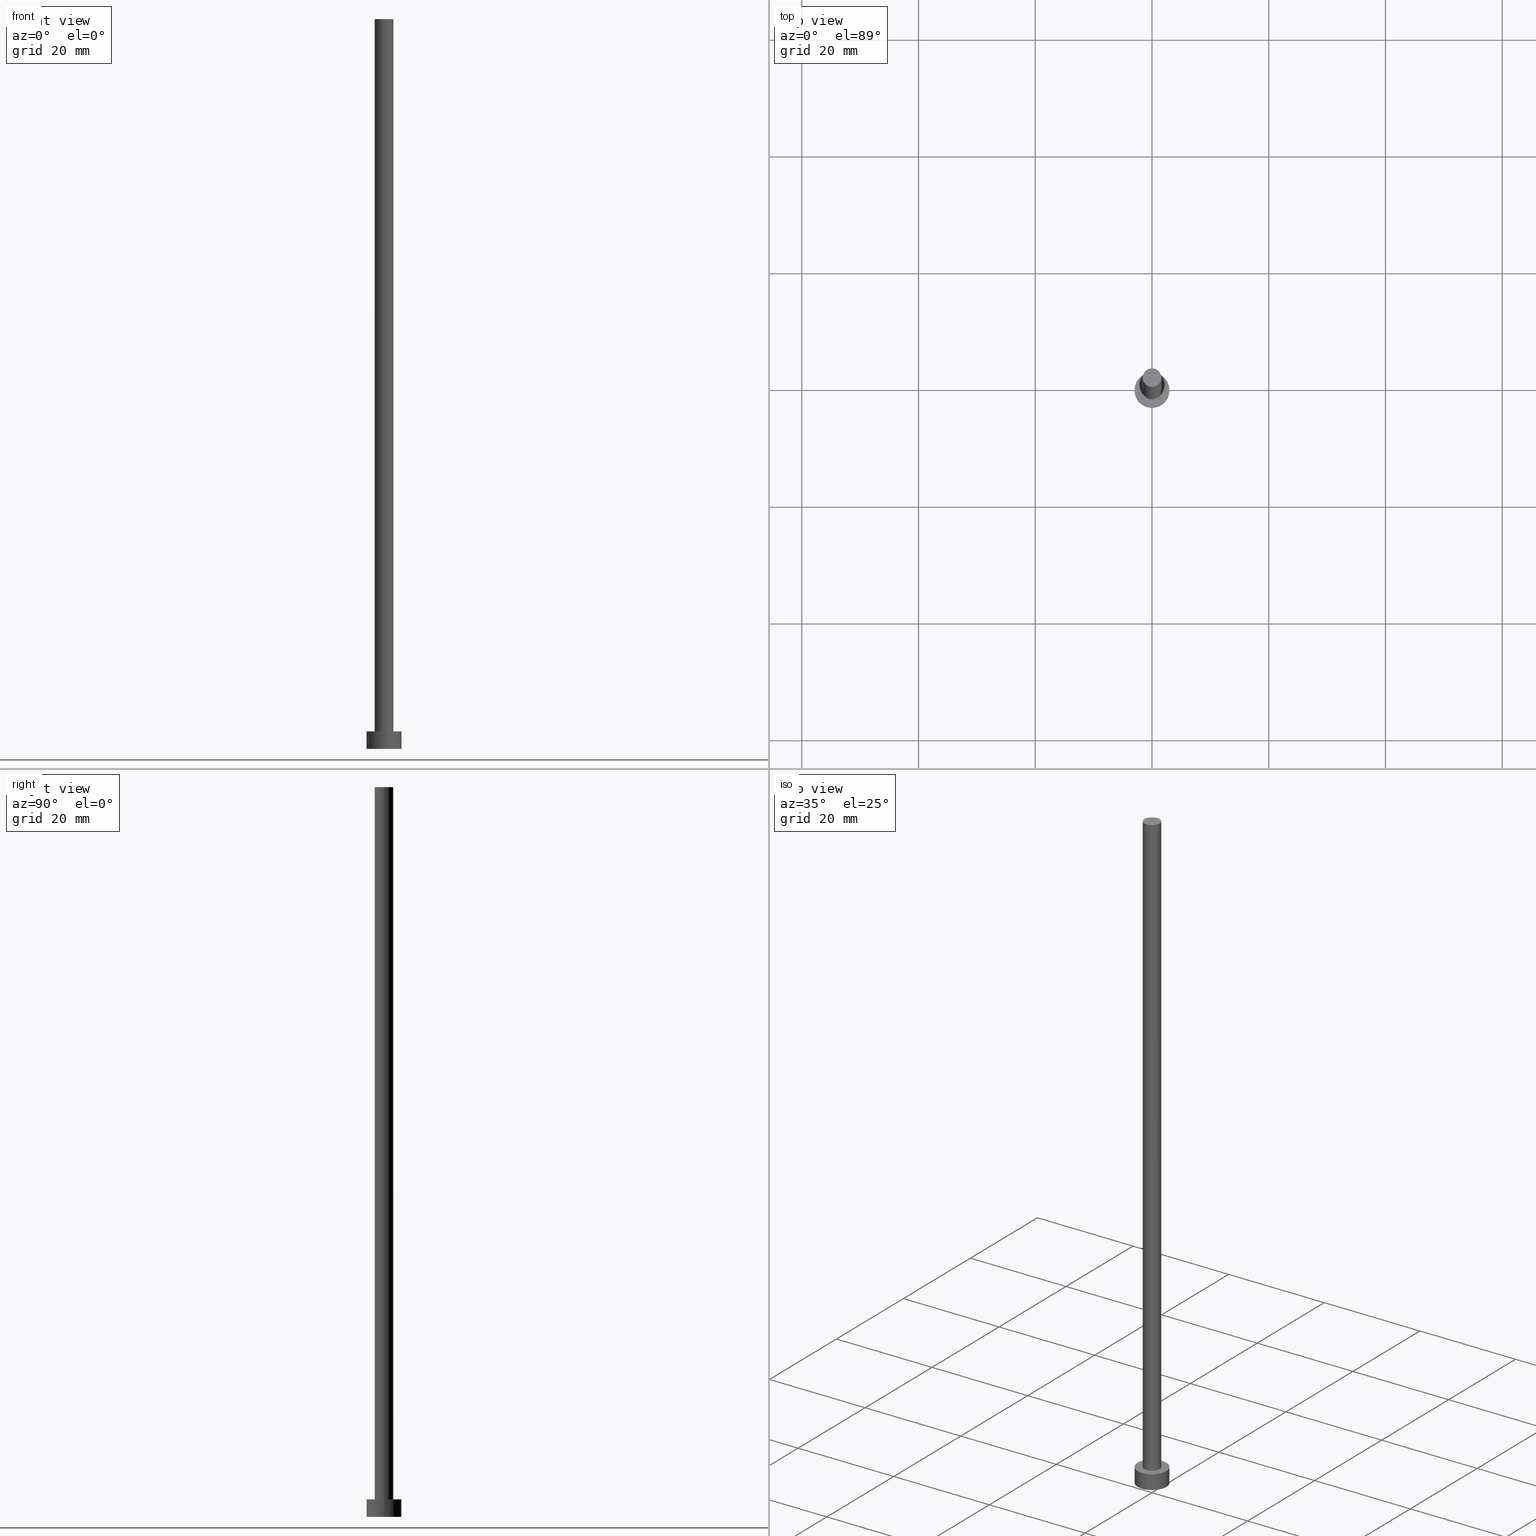
[diagram: canonical four-view strip — front | top / right | iso, engineering-drawing reading convention]
A machine part, canonical four-view strip (front | top / right | iso — engineering-drawing reading convention). The complete STEP part file that produces these views, byte-faithful:
ISO-10303-21;
HEADER;
FILE_DESCRIPTION (( 'STEP AP203' ),
    '1' );
FILE_NAME ('8186.STEP',
    '2023-02-12T12:44:56',
    ( '' ),
    ( '' ),
    'SwSTEP 2.0',
    'SolidWorks 2019',
    '' );
FILE_SCHEMA (( 'CONFIG_CONTROL_DESIGN' ));
ENDSEC;

DATA;
#1 = CALENDAR_DATE ( 2023, 12, 2 ) ;
#2 = EDGE_LOOP ( 'NONE', ( #82, #155 ) ) ;
#3 = DATE_AND_TIME ( #102, #180 ) ;
#4 = DIRECTION ( 'NONE',  ( 1.000000000000000000, 0.000000000000000000, 0.000000000000000000 ) ) ;
#5 = EDGE_LOOP ( 'NONE', ( #217, #103 ) ) ;
#6 = APPROVAL_ROLE ( '' ) ;
#7 = LINE ( 'NONE', #32, #136 ) ;
#8 = CALENDAR_DATE ( 2023, 12, 2 ) ;
#9 = FACE_OUTER_BOUND ( 'NONE', #135, .T. ) ;
#10 = DIRECTION ( 'NONE',  ( 0.000000000000000000, 0.000000000000000000, 1.000000000000000000 ) ) ;
#11 = AXIS2_PLACEMENT_3D ( 'NONE', #225, #29, #149 ) ;
#12 = SECURITY_CLASSIFICATION ( '', '', #100 ) ;
#13 = CARTESIAN_POINT ( 'NONE',  ( 0.000000000000000000, 0.000000000000000000, 125.0000000000000000 ) ) ;
#14 = CC_DESIGN_APPROVAL ( #210, ( #134 ) ) ;
#15 = CARTESIAN_POINT ( 'NONE',  ( -3.000000000000000444, 0.000000000000000000, 3.000000000000000000 ) ) ;
#16 = AXIS2_PLACEMENT_3D ( 'NONE', #160, #157, #4 ) ;
#17 = PRODUCT_RELATED_PRODUCT_CATEGORY ( 'detail', '', ( #175 ) ) ;
#18 = EDGE_LOOP ( 'NONE', ( #140, #101 ) ) ;
#19 = APPROVAL_DATE_TIME ( #137, #210 ) ;
#20 = ORIENTED_EDGE ( 'NONE', *, *, #219, .F. ) ;
#21 = PERSON_AND_ORGANIZATION ( #193, #72 ) ;
#22 = CLOSED_SHELL ( 'NONE', ( #131, #128, #99, #74, #230, #93, #113 ) ) ;
#23 = ORIENTED_EDGE ( 'NONE', *, *, #253, .T. ) ;
#24 = APPROVAL_PERSON_ORGANIZATION ( #174, #210, #218 ) ;
#25 = COORDINATED_UNIVERSAL_TIME_OFFSET ( 1, 0, .AHEAD. ) ;
#26 = ORIENTED_EDGE ( 'NONE', *, *, #214, .T. ) ;
#27 = APPROVAL ( #79, 'NEUR�EN�' ) ;
#28 = DATE_AND_TIME ( #8, #81 ) ;
#29 = DIRECTION ( 'NONE',  ( 0.000000000000000000, 0.000000000000000000, 1.000000000000000000 ) ) ;
#30 = AXIS2_PLACEMENT_3D ( 'NONE', #39, #250, #216 ) ;
#31 = CARTESIAN_POINT ( 'NONE',  ( 0.000000000000000000, 0.000000000000000000, 125.0000000000000000 ) ) ;
#32 = CARTESIAN_POINT ( 'NONE',  ( 3.000000000000000444, 3.673940397442060361E-16, 3.000000000000000000 ) ) ;
#33 = APPROVAL_PERSON_ORGANIZATION ( #46, #27, #121 ) ;
#34 = DESIGN_CONTEXT ( 'detailed design', #194, 'design' ) ;
#35 = DIRECTION ( 'NONE',  ( 1.000000000000000000, 0.000000000000000000, 0.000000000000000000 ) ) ;
#36 = APPLICATION_CONTEXT ( 'configuration controlled 3d designs of mechanical parts and assemblies' ) ;
#37 = DIRECTION ( 'NONE',  ( -0.000000000000000000, -0.000000000000000000, -1.000000000000000000 ) ) ;
#38 = LOCAL_TIME ( 13, 44, 56.00000000000000000, #235 ) ;
#39 = CARTESIAN_POINT ( 'NONE',  ( 0.000000000000000000, 0.000000000000000000, 0.000000000000000000 ) ) ;
#40 = CARTESIAN_POINT ( 'NONE',  ( 1.600000000000000089, 1.959434878635764737E-16, 125.0000000000000000 ) ) ;
#41 = MECHANICAL_CONTEXT ( 'NONE', #36, 'mechanical' ) ;
#42 = ORIENTED_EDGE ( 'NONE', *, *, #104, .F. ) ;
#43 = EDGE_CURVE ( 'NONE', #255, #117, #164, .T. ) ;
#44 = PERSON_AND_ORGANIZATION_ROLE ( 'creator' ) ;
#45 = ORIENTED_EDGE ( 'NONE', *, *, #253, .F. ) ;
#46 = PERSON_AND_ORGANIZATION ( #193, #72 ) ;
#47 =( GEOMETRIC_REPRESENTATION_CONTEXT ( 3 ) GLOBAL_UNCERTAINTY_ASSIGNED_CONTEXT ( ( #129 ) ) GLOBAL_UNIT_ASSIGNED_CONTEXT ( ( #56, #213, #58 ) ) REPRESENTATION_CONTEXT ( 'NONE', 'WORKASPACE' ) );
#48 = DIRECTION ( 'NONE',  ( 0.000000000000000000, 0.000000000000000000, 1.000000000000000000 ) ) ;
#49 = ORIENTED_EDGE ( 'NONE', *, *, #76, .F. ) ;
#50 = DIRECTION ( 'NONE',  ( -0.000000000000000000, -0.000000000000000000, -1.000000000000000000 ) ) ;
#51 = EDGE_CURVE ( 'NONE', #192, #96, #143, .T. ) ;
#52 = CARTESIAN_POINT ( 'NONE',  ( -1.600000000000000089, 0.000000000000000000, 3.000000000000000000 ) ) ;
#53 = COORDINATED_UNIVERSAL_TIME_OFFSET ( 1, 0, .AHEAD. ) ;
#54 = CYLINDRICAL_SURFACE ( 'NONE', #120, 1.600000000000000089 ) ;
#55 = CIRCLE ( 'NONE', #59, 1.600000000000000089 ) ;
#56 =( LENGTH_UNIT ( ) NAMED_UNIT ( * ) SI_UNIT ( .MILLI., .METRE. ) );
#57 = EDGE_CURVE ( 'NONE', #80, #119, #244, .T. ) ;
#58 =( NAMED_UNIT ( * ) SI_UNIT ( $, .STERADIAN. ) SOLID_ANGLE_UNIT ( ) );
#59 = AXIS2_PLACEMENT_3D ( 'NONE', #205, #10, #126 ) ;
#60 = PERSON_AND_ORGANIZATION ( #193, #72 ) ;
#61 = LOCAL_TIME ( 13, 44, 56.00000000000000000, #62 ) ;
#62 = COORDINATED_UNIVERSAL_TIME_OFFSET ( 1, 0, .AHEAD. ) ;
#63 = ORIENTED_EDGE ( 'NONE', *, *, #171, .T. ) ;
#64 = PERSON_AND_ORGANIZATION_ROLE ( 'classification_officer' ) ;
#65 = CARTESIAN_POINT ( 'NONE',  ( 0.000000000000000000, 0.000000000000000000, 3.000000000000000000 ) ) ;
#66 = VECTOR ( 'NONE', #37, 1000.000000000000000 ) ;
#67 = DIRECTION ( 'NONE',  ( 0.000000000000000000, 0.000000000000000000, 1.000000000000000000 ) ) ;
#68 = PERSON_AND_ORGANIZATION ( #193, #72 ) ;
#69 = CYLINDRICAL_SURFACE ( 'NONE', #248, 1.600000000000000089 ) ;
#70 = EDGE_CURVE ( 'NONE', #96, #122, #179, .T. ) ;
#71 = CARTESIAN_POINT ( 'NONE',  ( 1.600000000000000089, 1.959434878635764737E-16, 3.000000000000000000 ) ) ;
#72 = ORGANIZATION ( 'NEUR�EN�', 'NEUR�EN�', '' ) ;
#73 = FACE_OUTER_BOUND ( 'NONE', #220, .T. ) ;
#74 = ADVANCED_FACE ( 'NONE', ( #106, #146 ), #105, .T. ) ;
#75 = CARTESIAN_POINT ( 'NONE',  ( 0.000000000000000000, 0.000000000000000000, 0.000000000000000000 ) ) ;
#76 = EDGE_CURVE ( 'NONE', #192, #173, #55, .T. ) ;
#77 = DIRECTION ( 'NONE',  ( 1.000000000000000000, 0.000000000000000000, 0.000000000000000000 ) ) ;
#78 = DIRECTION ( 'NONE',  ( 0.000000000000000000, 0.000000000000000000, 1.000000000000000000 ) ) ;
#79 = APPROVAL_STATUS ( 'not_yet_approved' ) ;
#80 = VERTEX_POINT ( 'NONE', #182 ) ;
#81 = LOCAL_TIME ( 13, 44, 56.00000000000000000, #53 ) ;
#82 = ORIENTED_EDGE ( 'NONE', *, *, #70, .F. ) ;
#83 = PERSON_AND_ORGANIZATION_ROLE ( 'design_owner' ) ;
#84 = DIRECTION ( 'NONE',  ( 1.000000000000000000, 0.000000000000000000, 0.000000000000000000 ) ) ;
#85 = ORIENTED_EDGE ( 'NONE', *, *, #57, .F. ) ;
#86 = APPROVAL_DATE_TIME ( #28, #148 ) ;
#87 = CARTESIAN_POINT ( 'NONE',  ( -3.000000000000000444, 0.000000000000000000, 3.000000000000000000 ) ) ;
#88 = DIRECTION ( 'NONE',  ( -1.000000000000000000, 0.000000000000000000, 0.000000000000000000 ) ) ;
#89 = CYLINDRICAL_SURFACE ( 'NONE', #98, 3.000000000000000444 ) ;
#90 = CC_DESIGN_DATE_AND_TIME_ASSIGNMENT ( #139, #199, ( #207 ) ) ;
#91 = MANIFOLD_SOLID_BREP ( 'P�idat vysunut�m3', #22 ) ;
#92 = DIRECTION ( 'NONE',  ( 1.000000000000000000, 0.000000000000000000, 0.000000000000000000 ) ) ;
#93 = ADVANCED_FACE ( 'NONE', ( #206 ), #54, .T. ) ;
#94 = AXIS2_PLACEMENT_3D ( 'NONE', #208, #147, #35 ) ;
#95 = AXIS2_PLACEMENT_3D ( 'NONE', #229, #167, #97 ) ;
#96 = VERTEX_POINT ( 'NONE', #52 ) ;
#97 = DIRECTION ( 'NONE',  ( 1.000000000000000000, 0.000000000000000000, 0.000000000000000000 ) ) ;
#98 = AXIS2_PLACEMENT_3D ( 'NONE', #181, #166, #163 ) ;
#99 = ADVANCED_FACE ( 'NONE', ( #9 ), #89, .T. ) ;
#100 = SECURITY_CLASSIFICATION_LEVEL ( 'unclassified' ) ;
#101 = ORIENTED_EDGE ( 'NONE', *, *, #214, .F. ) ;
#102 = CALENDAR_DATE ( 2023, 12, 2 ) ;
#103 = ORIENTED_EDGE ( 'NONE', *, *, #219, .T. ) ;
#104 = EDGE_CURVE ( 'NONE', #80, #117, #7, .T. ) ;
#105 = PLANE ( 'NONE',  #11 ) ;
#106 = FACE_BOUND ( 'NONE', #2, .T. ) ;
#107 = DIRECTION ( 'NONE',  ( -0.000000000000000000, -0.000000000000000000, -1.000000000000000000 ) ) ;
#108 = DIRECTION ( 'NONE',  ( 0.000000000000000000, 0.000000000000000000, 1.000000000000000000 ) ) ;
#109 = CARTESIAN_POINT ( 'NONE',  ( 3.000000000000000444, 3.673940397442060361E-16, 0.000000000000000000 ) ) ;
#110 = FACE_OUTER_BOUND ( 'NONE', #18, .T. ) ;
#111 = CARTESIAN_POINT ( 'NONE',  ( 0.000000000000000000, 0.000000000000000000, 125.0000000000000000 ) ) ;
#112 = APPROVAL_PERSON_ORGANIZATION ( #68, #148, #6 ) ;
#113 = ADVANCED_FACE ( 'NONE', ( #241 ), #240, .T. ) ;
#114 = CARTESIAN_POINT ( 'NONE',  ( -1.600000000000000089, 0.000000000000000000, 125.0000000000000000 ) ) ;
#115 = APPROVAL_STATUS ( 'not_yet_approved' ) ;
#116 = CC_DESIGN_PERSON_AND_ORGANIZATION_ASSIGNMENT ( #156, #64, ( #12 ) ) ;
#117 = VERTEX_POINT ( 'NONE', #109 ) ;
#118 = PERSON_AND_ORGANIZATION ( #193, #72 ) ;
#119 = VERTEX_POINT ( 'NONE', #87 ) ;
#120 = AXIS2_PLACEMENT_3D ( 'NONE', #31, #50, #88 ) ;
#121 = APPROVAL_ROLE ( '' ) ;
#122 = VERTEX_POINT ( 'NONE', #71 ) ;
#123 = ORIENTED_EDGE ( 'NONE', *, *, #43, .T. ) ;
#124 = VECTOR ( 'NONE', #152, 1000.000000000000000 ) ;
#125 = CC_DESIGN_APPROVAL ( #148, ( #12 ) ) ;
#126 = DIRECTION ( 'NONE',  ( 1.000000000000000000, 0.000000000000000000, 0.000000000000000000 ) ) ;
#127 = DIRECTION ( 'NONE',  ( 1.000000000000000000, 0.000000000000000000, 0.000000000000000000 ) ) ;
#128 = ADVANCED_FACE ( 'NONE', ( #223 ), #185, .T. ) ;
#129 = UNCERTAINTY_MEASURE_WITH_UNIT (LENGTH_MEASURE( 1.000000000000000082E-05 ), #56, 'distance_accuracy_value', 'NONE');
#130 = DIRECTION ( 'NONE',  ( -1.000000000000000000, 0.000000000000000000, 0.000000000000000000 ) ) ;
#131 = ADVANCED_FACE ( 'NONE', ( #73 ), #69, .T. ) ;
#132 = CARTESIAN_POINT ( 'NONE',  ( 0.000000000000000000, 0.000000000000000000, 3.000000000000000000 ) ) ;
#133 = EDGE_LOOP ( 'NONE', ( #23, #138 ) ) ;
#134 = PRODUCT_DEFINITION_FORMATION_WITH_SPECIFIED_SOURCE ( 'LIBOVOLN�', '', #175, .NOT_KNOWN. ) ;
#135 = EDGE_LOOP ( 'NONE', ( #42, #45, #63, #123 ) ) ;
#136 = VECTOR ( 'NONE', #107, 1000.000000000000000 ) ;
#137 = DATE_AND_TIME ( #144, #61 ) ;
#138 = ORIENTED_EDGE ( 'NONE', *, *, #57, .T. ) ;
#139 = DATE_AND_TIME ( #1, #228 ) ;
#140 = ORIENTED_EDGE ( 'NONE', *, *, #43, .F. ) ;
#141 = PRODUCT_DEFINITION_SHAPE ( 'NONE', 'NONE',  #207 ) ;
#142 = DATE_AND_TIME ( #153, #38 ) ;
#143 = LINE ( 'NONE', #236, #196 ) ;
#144 = CALENDAR_DATE ( 2023, 12, 2 ) ;
#145 = ORIENTED_EDGE ( 'NONE', *, *, #104, .T. ) ;
#146 = FACE_OUTER_BOUND ( 'NONE', #133, .T. ) ;
#147 = DIRECTION ( 'NONE',  ( 0.000000000000000000, 0.000000000000000000, 1.000000000000000000 ) ) ;
#148 = APPROVAL ( #203, 'NEUR�EN�' ) ;
#149 = DIRECTION ( 'NONE',  ( 1.000000000000000000, 0.000000000000000000, -0.000000000000000000 ) ) ;
#150 = DIRECTION ( 'NONE',  ( -0.000000000000000000, -0.000000000000000000, -1.000000000000000000 ) ) ;
#151 = CIRCLE ( 'NONE', #95, 3.000000000000000444 ) ;
#152 = DIRECTION ( 'NONE',  ( -0.000000000000000000, -0.000000000000000000, -1.000000000000000000 ) ) ;
#153 = CALENDAR_DATE ( 2023, 12, 2 ) ;
#154 = APPLICATION_PROTOCOL_DEFINITION ( 'international standard', 'config_control_design', 1994, #194 ) ;
#155 = ORIENTED_EDGE ( 'NONE', *, *, #168, .F. ) ;
#156 = PERSON_AND_ORGANIZATION ( #193, #72 ) ;
#157 = DIRECTION ( 'NONE',  ( 0.000000000000000000, 0.000000000000000000, 1.000000000000000000 ) ) ;
#158 = APPROVAL_DATE_TIME ( #142, #27 ) ;
#159 = EDGE_LOOP ( 'NONE', ( #85, #145, #26, #195 ) ) ;
#160 = CARTESIAN_POINT ( 'NONE',  ( 0.000000000000000000, 0.000000000000000000, 0.000000000000000000 ) ) ;
#161 = CARTESIAN_POINT ( 'NONE',  ( 0.000000000000000000, 0.000000000000000000, 3.000000000000000000 ) ) ;
#162 = CC_DESIGN_PERSON_AND_ORGANIZATION_ASSIGNMENT ( #21, #254, ( #134 ) ) ;
#163 = DIRECTION ( 'NONE',  ( -1.000000000000000000, 0.000000000000000000, 0.000000000000000000 ) ) ;
#164 = CIRCLE ( 'NONE', #16, 3.000000000000000444 ) ;
#165 = CC_DESIGN_SECURITY_CLASSIFICATION ( #12, ( #134 ) ) ;
#166 = DIRECTION ( 'NONE',  ( -0.000000000000000000, -0.000000000000000000, -1.000000000000000000 ) ) ;
#167 = DIRECTION ( 'NONE',  ( 0.000000000000000000, 0.000000000000000000, 1.000000000000000000 ) ) ;
#168 = EDGE_CURVE ( 'NONE', #122, #96, #190, .T. ) ;
#169 = DIRECTION ( 'NONE',  ( 1.000000000000000000, 0.000000000000000000, -0.000000000000000000 ) ) ;
#170 = CC_DESIGN_APPROVAL ( #27, ( #207 ) ) ;
#171 = EDGE_CURVE ( 'NONE', #119, #255, #204, .T. ) ;
#172 = PERSON_AND_ORGANIZATION_ROLE ( 'creator' ) ;
#173 = VERTEX_POINT ( 'NONE', #40 ) ;
#174 = PERSON_AND_ORGANIZATION ( #193, #72 ) ;
#175 = PRODUCT ( '8186', '8186', '', ( #41 ) ) ;
#176 = ORIENTED_EDGE ( 'NONE', *, *, #197, .F. ) ;
#177 = DIRECTION ( 'NONE',  ( -0.000000000000000000, -0.000000000000000000, -1.000000000000000000 ) ) ;
#178 = ORIENTED_EDGE ( 'NONE', *, *, #168, .T. ) ;
#179 = CIRCLE ( 'NONE', #202, 1.600000000000000089 ) ;
#180 = LOCAL_TIME ( 13, 44, 56.00000000000000000, #25 ) ;
#181 = CARTESIAN_POINT ( 'NONE',  ( 0.000000000000000000, 0.000000000000000000, 3.000000000000000000 ) ) ;
#182 = CARTESIAN_POINT ( 'NONE',  ( 3.000000000000000444, 3.673940397442060361E-16, 3.000000000000000000 ) ) ;
#183 = CARTESIAN_POINT ( 'NONE',  ( 0.000000000000000000, 0.000000000000000000, 125.0000000000000000 ) ) ;
#184 = SHAPE_DEFINITION_REPRESENTATION ( #141, #251 ) ;
#185 = CYLINDRICAL_SURFACE ( 'NONE', #232, 3.000000000000000444 ) ;
#186 = DIRECTION ( 'NONE',  ( -1.000000000000000000, 0.000000000000000000, 0.000000000000000000 ) ) ;
#187 = PLANE ( 'NONE',  #212 ) ;
#188 = CIRCLE ( 'NONE', #198, 3.000000000000000444 ) ;
#189 = CC_DESIGN_PERSON_AND_ORGANIZATION_ASSIGNMENT ( #191, #44, ( #207 ) ) ;
#190 = CIRCLE ( 'NONE', #94, 1.600000000000000089 ) ;
#191 = PERSON_AND_ORGANIZATION ( #193, #72 ) ;
#192 = VERTEX_POINT ( 'NONE', #114 ) ;
#193 = PERSON ( 'NEUR�EN�', 'NEUR�EN�', 'NEUR�EN�', ('NEUR�EN�'), ('NEUR�EN�'), ('NEUR�EN�') ) ;
#194 = APPLICATION_CONTEXT ( 'configuration controlled 3d designs of mechanical parts and assemblies' ) ;
#195 = ORIENTED_EDGE ( 'NONE', *, *, #171, .F. ) ;
#196 = VECTOR ( 'NONE', #177, 1000.000000000000000 ) ;
#197 = EDGE_CURVE ( 'NONE', #173, #122, #209, .T. ) ;
#198 = AXIS2_PLACEMENT_3D ( 'NONE', #132, #245, #77 ) ;
#199 = DATE_TIME_ROLE ( 'creation_date' ) ;
#200 = ORIENTED_EDGE ( 'NONE', *, *, #197, .T. ) ;
#201 = ORIENTED_EDGE ( 'NONE', *, *, #70, .T. ) ;
#202 = AXIS2_PLACEMENT_3D ( 'NONE', #238, #67, #127 ) ;
#203 = APPROVAL_STATUS ( 'not_yet_approved' ) ;
#204 = LINE ( 'NONE', #15, #124 ) ;
#205 = CARTESIAN_POINT ( 'NONE',  ( 0.000000000000000000, 0.000000000000000000, 125.0000000000000000 ) ) ;
#206 = FACE_OUTER_BOUND ( 'NONE', #222, .T. ) ;
#207 = PRODUCT_DEFINITION ( 'NEZN�M�', '', #134, #34 ) ;
#208 = CARTESIAN_POINT ( 'NONE',  ( 0.000000000000000000, 0.000000000000000000, 3.000000000000000000 ) ) ;
#209 = LINE ( 'NONE', #249, #66 ) ;
#210 = APPROVAL ( #115, 'NEUR�EN�' ) ;
#211 = DIRECTION ( 'NONE',  ( 0.000000000000000000, 0.000000000000000000, 1.000000000000000000 ) ) ;
#212 = AXIS2_PLACEMENT_3D ( 'NONE', #75, #211, #169 ) ;
#213 =( NAMED_UNIT ( * ) PLANE_ANGLE_UNIT ( ) SI_UNIT ( $, .RADIAN. ) );
#214 = EDGE_CURVE ( 'NONE', #117, #255, #151, .T. ) ;
#215 = AXIS2_PLACEMENT_3D ( 'NONE', #111, #78, #92 ) ;
#216 = DIRECTION ( 'NONE',  ( 1.000000000000000000, 0.000000000000000000, 0.000000000000000000 ) ) ;
#217 = ORIENTED_EDGE ( 'NONE', *, *, #76, .T. ) ;
#218 = APPROVAL_ROLE ( '' ) ;
#219 = EDGE_CURVE ( 'NONE', #173, #192, #242, .T. ) ;
#220 = EDGE_LOOP ( 'NONE', ( #20, #200, #178, #252 ) ) ;
#221 = AXIS2_PLACEMENT_3D ( 'NONE', #183, #108, #226 ) ;
#222 = EDGE_LOOP ( 'NONE', ( #176, #49, #233, #201 ) ) ;
#223 = FACE_OUTER_BOUND ( 'NONE', #159, .T. ) ;
#224 = CC_DESIGN_PERSON_AND_ORGANIZATION_ASSIGNMENT ( #60, #83, ( #175 ) ) ;
#225 = CARTESIAN_POINT ( 'NONE',  ( 0.000000000000000000, 0.000000000000000000, 3.000000000000000000 ) ) ;
#226 = DIRECTION ( 'NONE',  ( 1.000000000000000000, 0.000000000000000000, -0.000000000000000000 ) ) ;
#227 = CARTESIAN_POINT ( 'NONE',  ( -3.000000000000000444, 0.000000000000000000, 0.000000000000000000 ) ) ;
#228 = LOCAL_TIME ( 13, 44, 56.00000000000000000, #231 ) ;
#229 = CARTESIAN_POINT ( 'NONE',  ( 0.000000000000000000, 0.000000000000000000, 0.000000000000000000 ) ) ;
#230 = ADVANCED_FACE ( 'NONE', ( #110 ), #187, .F. ) ;
#231 = COORDINATED_UNIVERSAL_TIME_OFFSET ( 1, 0, .AHEAD. ) ;
#232 = AXIS2_PLACEMENT_3D ( 'NONE', #161, #243, #186 ) ;
#233 = ORIENTED_EDGE ( 'NONE', *, *, #51, .T. ) ;
#234 = CC_DESIGN_DATE_AND_TIME_ASSIGNMENT ( #3, #237, ( #12 ) ) ;
#235 = COORDINATED_UNIVERSAL_TIME_OFFSET ( 1, 0, .AHEAD. ) ;
#236 = CARTESIAN_POINT ( 'NONE',  ( -1.600000000000000089, 0.000000000000000000, 125.0000000000000000 ) ) ;
#237 = DATE_TIME_ROLE ( 'classification_date' ) ;
#238 = CARTESIAN_POINT ( 'NONE',  ( 0.000000000000000000, 0.000000000000000000, 3.000000000000000000 ) ) ;
#239 = AXIS2_PLACEMENT_3D ( 'NONE', #65, #48, #84 ) ;
#240 = PLANE ( 'NONE',  #221 ) ;
#241 = FACE_OUTER_BOUND ( 'NONE', #5, .T. ) ;
#242 = CIRCLE ( 'NONE', #215, 1.600000000000000089 ) ;
#243 = DIRECTION ( 'NONE',  ( -0.000000000000000000, -0.000000000000000000, -1.000000000000000000 ) ) ;
#244 = CIRCLE ( 'NONE', #239, 3.000000000000000444 ) ;
#245 = DIRECTION ( 'NONE',  ( 0.000000000000000000, 0.000000000000000000, 1.000000000000000000 ) ) ;
#246 = CC_DESIGN_PERSON_AND_ORGANIZATION_ASSIGNMENT ( #118, #172, ( #134 ) ) ;
#247 = APPLICATION_PROTOCOL_DEFINITION ( 'international standard', 'config_control_design', 1994, #36 ) ;
#248 = AXIS2_PLACEMENT_3D ( 'NONE', #13, #150, #130 ) ;
#249 = CARTESIAN_POINT ( 'NONE',  ( 1.600000000000000089, 1.959434878635764737E-16, 125.0000000000000000 ) ) ;
#250 = DIRECTION ( 'NONE',  ( 0.000000000000000000, 0.000000000000000000, 1.000000000000000000 ) ) ;
#251 = ADVANCED_BREP_SHAPE_REPRESENTATION ( '8186', ( #91, #30 ), #47 ) ;
#252 = ORIENTED_EDGE ( 'NONE', *, *, #51, .F. ) ;
#253 = EDGE_CURVE ( 'NONE', #119, #80, #188, .T. ) ;
#254 = PERSON_AND_ORGANIZATION_ROLE ( 'design_supplier' ) ;
#255 = VERTEX_POINT ( 'NONE', #227 ) ;
ENDSEC;
END-ISO-10303-21;
